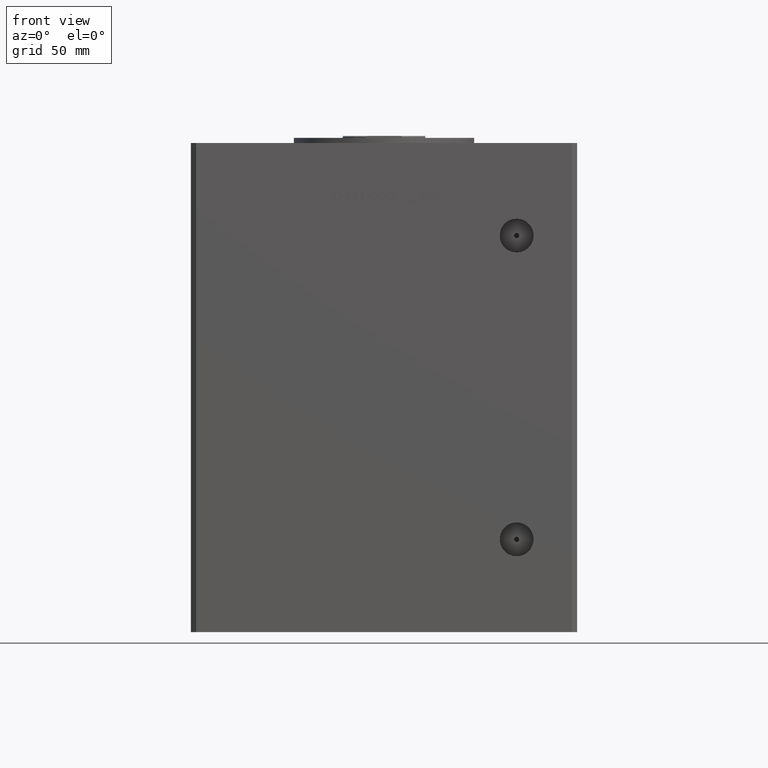
[diagram: clean part render]
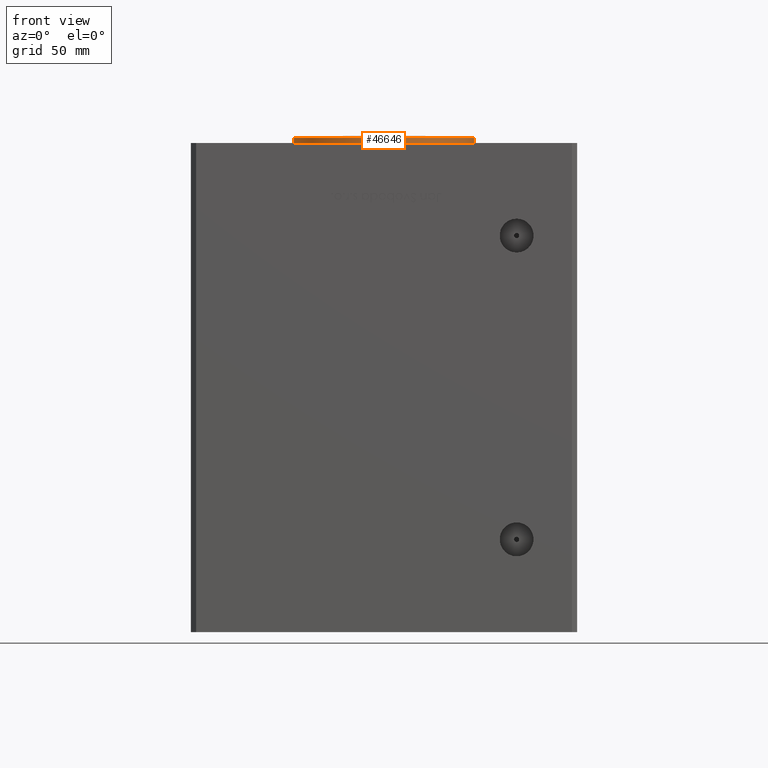
[diagram: same view with one face highlighted and labeled with its STEP entity id]
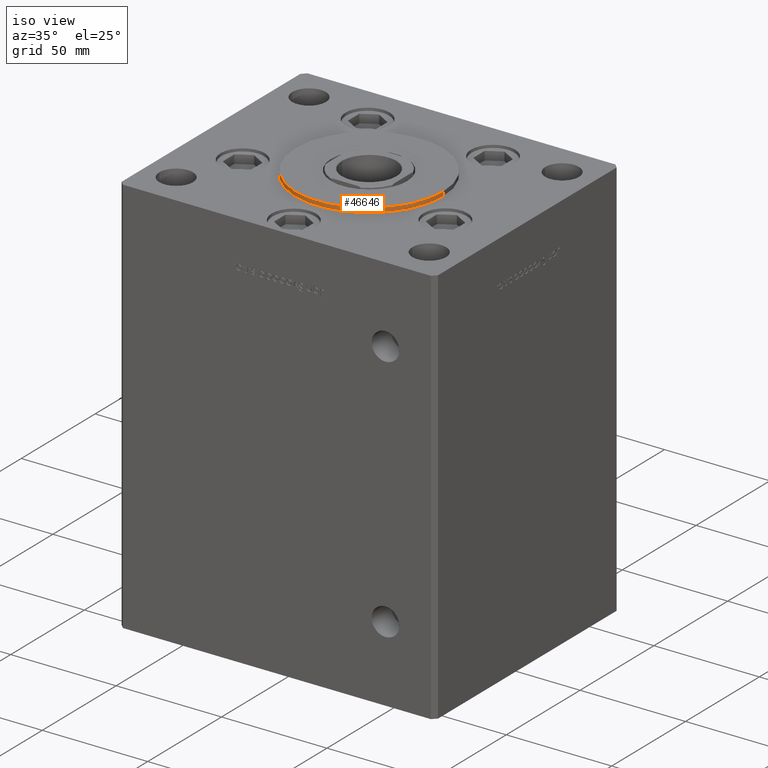
[diagram: same view with one face highlighted and labeled with its STEP entity id]
A machine part, front view. The second image highlights one B-rep face of the part: STEP entity #46646.
A second angle (iso view) of the same face is appended — the face is thin or edge-on in the first view.
In plain terms, the highlighted cylindrical surface (partial cylindrical patch) has radius 35 mm, axis along (-0, -0, -1).
Its self-contained STEP definition (entity closure, byte-faithful):
#1263 = EDGE_CURVE ( 'NONE', #10401, #17487, #47419, .T. ) ;
#1322 = DIRECTION ( 'NONE',  ( -0.000000000000000000, -0.000000000000000000, -1.000000000000000000 ) ) ;
#1589 = DIRECTION ( 'NONE',  ( -1.000000000000000000, 0.000000000000000000, 0.000000000000000000 ) ) ;
#1890 = EDGE_CURVE ( 'NONE', #17487, #3211, #43109, .T. ) ;
#3211 = VERTEX_POINT ( 'NONE', #16160 ) ;
#3906 = CARTESIAN_POINT ( 'NONE',  ( -35.00000000000000711, -6.938893903907228378E-15, 0.000000000000000000 ) ) ;
#4758 = ORIENTED_EDGE ( 'NONE', *, *, #9535, .T. ) ;
#7260 = DIRECTION ( 'NONE',  ( 0.000000000000000000, 0.000000000000000000, 1.000000000000000000 ) ) ;
#9161 = CARTESIAN_POINT ( 'NONE',  ( -35.00000000000000711, -6.938893903907228378E-15, 2.000000000000000000 ) ) ;
#9437 = CIRCLE ( 'NONE', #34386, 35.00000000000000711 ) ;
#9535 = EDGE_CURVE ( 'NONE', #51070, #3211, #9437, .T. ) ;
#10401 = VERTEX_POINT ( 'NONE', #29638 ) ;
#13016 = ORIENTED_EDGE ( 'NONE', *, *, #1890, .F. ) ;
#14466 = AXIS2_PLACEMENT_3D ( 'NONE', #49893, #7260, #41267 ) ;
#16160 = CARTESIAN_POINT ( 'NONE',  ( 35.00000000000000711, -2.652630106891490698E-15, 0.000000000000000000 ) ) ;
#17487 = VERTEX_POINT ( 'NONE', #37488 ) ;
#18865 = FACE_OUTER_BOUND ( 'NONE', #19293, .T. ) ;
#19067 = EDGE_CURVE ( 'NONE', #10401, #51070, #34798, .T. ) ;
#19293 = EDGE_LOOP ( 'NONE', ( #13016, #53993, #29957, #4758 ) ) ;
#20987 = CARTESIAN_POINT ( 'NONE',  ( 0.000000000000000000, -6.938893903907228378E-15, 0.000000000000000000 ) ) ;
#25171 = DIRECTION ( 'NONE',  ( 0.000000000000000000, 0.000000000000000000, 1.000000000000000000 ) ) ;
#27785 = CYLINDRICAL_SURFACE ( 'NONE', #40262, 35.00000000000000711 ) ;
#29638 = CARTESIAN_POINT ( 'NONE',  ( -35.00000000000000711, -6.938893903907228378E-15, 2.000000000000000000 ) ) ;
#29957 = ORIENTED_EDGE ( 'NONE', *, *, #19067, .T. ) ;
#31390 = VECTOR ( 'NONE', #52833, 1000.000000000000000 ) ;
#34386 = AXIS2_PLACEMENT_3D ( 'NONE', #20987, #25171, #37998 ) ;
#34498 = VECTOR ( 'NONE', #47600, 1000.000000000000000 ) ;
#34798 = LINE ( 'NONE', #9161, #34498 ) ;
#35565 = CARTESIAN_POINT ( 'NONE',  ( 35.00000000000000711, -2.652630106891490698E-15, 2.000000000000000000 ) ) ;
#37488 = CARTESIAN_POINT ( 'NONE',  ( 35.00000000000000711, -2.652630106891490698E-15, 2.000000000000000000 ) ) ;
#37998 = DIRECTION ( 'NONE',  ( 1.000000000000000000, 0.000000000000000000, 0.000000000000000000 ) ) ;
#40262 = AXIS2_PLACEMENT_3D ( 'NONE', #44239, #1322, #1589 ) ;
#41267 = DIRECTION ( 'NONE',  ( 1.000000000000000000, 0.000000000000000000, 0.000000000000000000 ) ) ;
#43109 = LINE ( 'NONE', #35565, #31390 ) ;
#44239 = CARTESIAN_POINT ( 'NONE',  ( 0.000000000000000000, -6.938893903907228378E-15, 2.000000000000000000 ) ) ;
#46646 = ADVANCED_FACE ( 'NONE', ( #18865 ), #27785, .T. ) ;
#47419 = CIRCLE ( 'NONE', #14466, 35.00000000000000711 ) ;
#47600 = DIRECTION ( 'NONE',  ( -0.000000000000000000, -0.000000000000000000, -1.000000000000000000 ) ) ;
#49893 = CARTESIAN_POINT ( 'NONE',  ( 0.000000000000000000, -6.938893903907228378E-15, 2.000000000000000000 ) ) ;
#51070 = VERTEX_POINT ( 'NONE', #3906 ) ;
#52833 = DIRECTION ( 'NONE',  ( -0.000000000000000000, -0.000000000000000000, -1.000000000000000000 ) ) ;
#53993 = ORIENTED_EDGE ( 'NONE', *, *, #1263, .F. ) ;